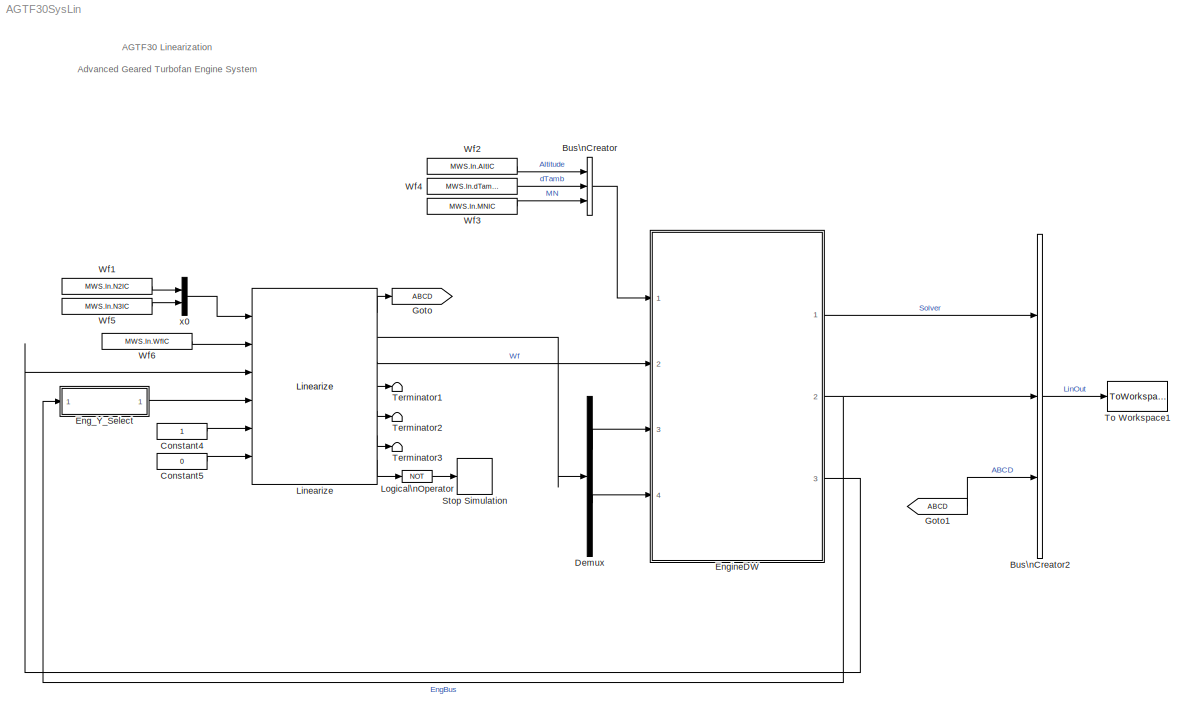
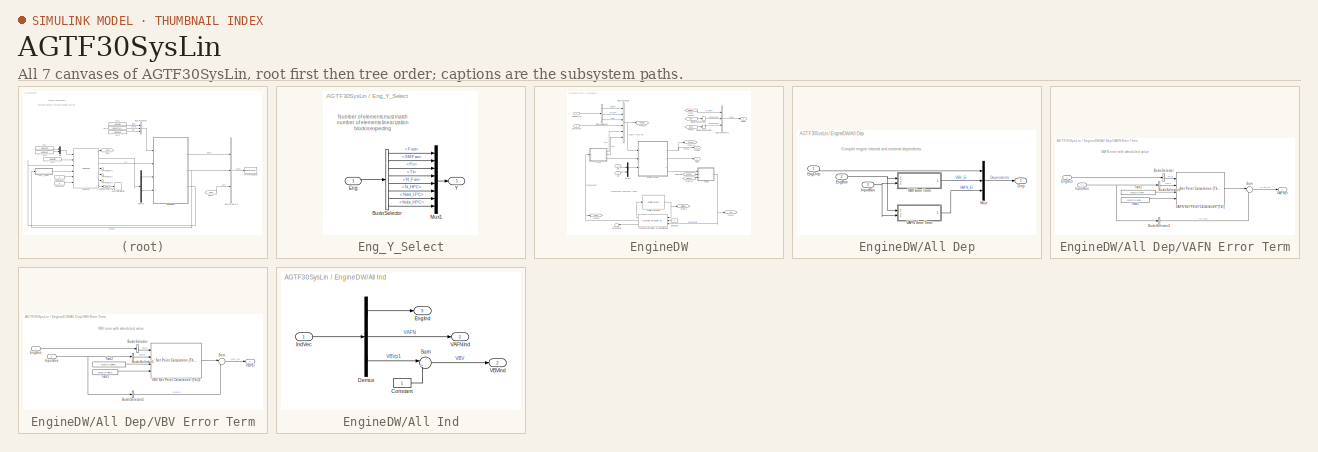
[diagram: thumbnail index - all 7 canvases of the model, root first then tree order]
MODEL AGTF30SysLin
KIND model
BLOCK [BusCreator] Bus\nCreator
  DisplayOption = bar
  Inputs = 3
  Ports = [3, 1]
  SID = 34
BLOCK [BusCreator] Bus\nCreator2
  DisplayOption = bar
  Inputs = 3
  Ports = [3, 1]
  SID = 60
BLOCK [Constant] Constant4
  SID = 48
BLOCK [Constant] Constant5
  SID = 49
  Value = 0
BLOCK [Demux] Demux
  DisplayOption = bar
  Outputs = 2
  Ports = [1, 2]
  SID = 42
BLOCK [SubSystem] Eng_Y_Select
  Ports = [1, 1]
  RequestExecContextInheritance = off
  SID = 54
BLOCK [BusSelector] Eng_Y_Select/Bus\nSelector
  OutputSignals = Perf.Fnet,SM.SMFan,S36.Ps,S45.Tt,Shaft.N_Fan,Shaft.N_HPC,Shaft.Ndot_LPC,Shaft.Ndot_HPC
  Ports = [1, 8]
  SID = 56
BLOCK [Inport] Eng_Y_Select/Eng
  IconDisplay = Port number
  SID = 55
BLOCK [Mux] Eng_Y_Select/Mux1
  DisplayOption = bar
  Inputs = 8
  Ports = [8, 1]
  SID = 57
BLOCK [Outport] Eng_Y_Select/Y
  IconDisplay = Port number
  SID = 58
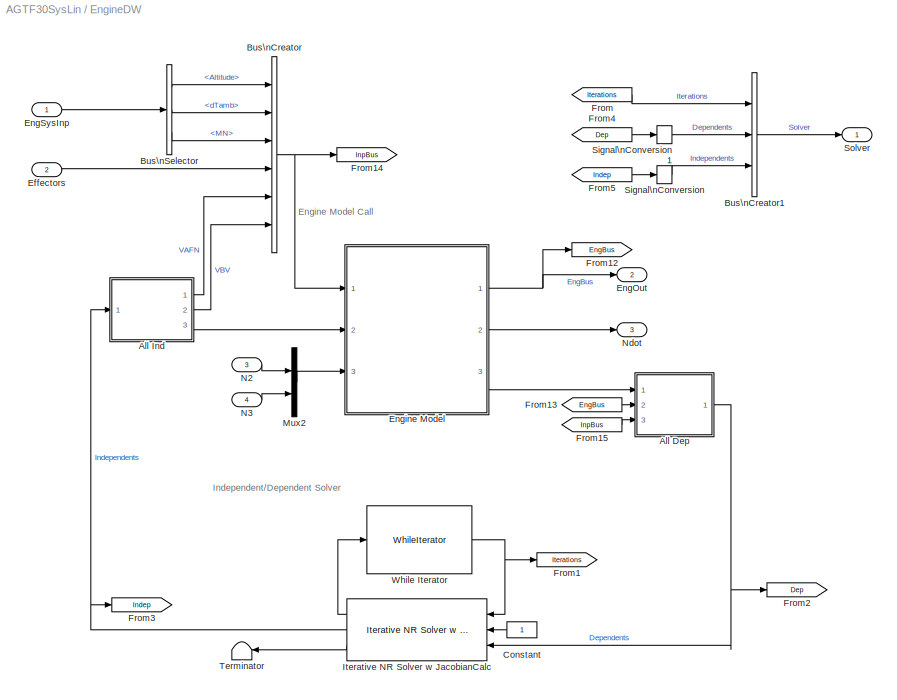
BLOCK [SubSystem] EngineDW
  Ports = [4, 3]
  RequestExecContextInheritance = off
  SID = 1
BLOCK [SubSystem] EngineDW/All Dep
  Ports = [3, 1]
  RequestExecContextInheritance = off
  SID = 113
BLOCK [Outport] EngineDW/All Dep/Dep
  IconDisplay = Port number
  SID = 118
BLOCK [Inport] EngineDW/All Dep/EngBus
  IconDisplay = Port number
  Port = 2
  SID = 115
BLOCK [Inport] EngineDW/All Dep/EngDep
  IconDisplay = Port number
  SID = 114
BLOCK [Inport] EngineDW/All Dep/InputBus
  IconDisplay = Port number
  Port = 3
  SID = 116
BLOCK [Mux] EngineDW/All Dep/Mux
  DisplayOption = bar
  Inputs = 3
  Ports = [3, 1]
  SID = 112
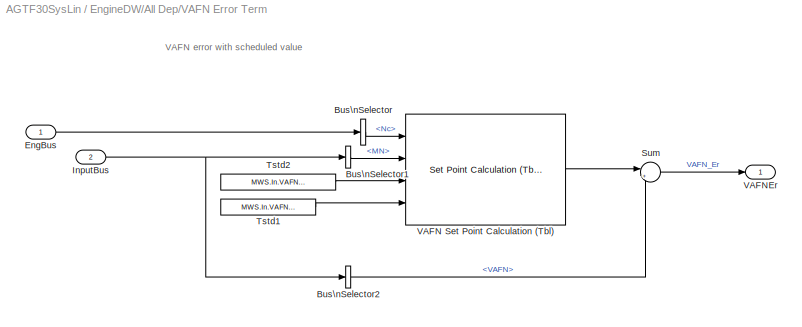
BLOCK [SubSystem] EngineDW/All Dep/VAFN Error Term
  Ports = [2, 1]
  RequestExecContextInheritance = off
  SID = 67
BLOCK [BusSelector] EngineDW/All Dep/VAFN Error Term/Bus\nSelector
  OutputSignals = Data.FAN_Data.Nc
  Ports = [1, 1]
  SID = 70
BLOCK [BusSelector] EngineDW/All Dep/VAFN Error Term/Bus\nSelector1
  OutputSignals = MN
  Ports = [1, 1]
  SID = 71
BLOCK [BusSelector] EngineDW/All Dep/VAFN Error Term/Bus\nSelector2
  OutputSignals = VAFN
  Ports = [1, 1]
  SID = 72
BLOCK [Inport] EngineDW/All Dep/VAFN Error Term/EngBus
  IconDisplay = Port number
  SID = 68
BLOCK [Inport] EngineDW/All Dep/VAFN Error Term/InputBus
  IconDisplay = Port number
  Port = 2
  SID = 69
BLOCK [Sum] EngineDW/All Dep/VAFN Error Term/Sum
  IconShape = round
  InputSameDT = off
  Inputs = |+-
  OutDataTypeStr = Inherit: Inherit via internal rule
  Ports = [2, 1]
  SID = 73
  SaturateOnIntegerOverflow = off
BLOCK [Constant] EngineDW/All Dep/VAFN Error Term/Tstd1
  SID = 74
  Value = MWS.In.VAFNIC
BLOCK [Constant] EngineDW/All Dep/VAFN Error Term/Tstd2
  SID = 75
  Value = MWS.In.VAFNManEn
BLOCK [Reference] EngineDW/All Dep/VAFN Error Term/VAFN Set Point Calculation (Tbl)  REF=Lib_Cntrl_SetPoint_TMATS/Set Point Calculation (Tbl)
  DSVec_M = MWS.Cntrl.VAFN_MN
  ERVec_M = MWS.Cntrl.VAFN_Nc1
  Ports = [4, 1]
  SID = 76
  SPArray_M = MWS.Cntrl.VAFN_sch
  SourceBlock = Lib_Cntrl_SetPoint_TMATS/Set Point Calculation (Tbl)
  SourceType = T-MATS: Set Point Calculation (Tbl)
BLOCK [Outport] EngineDW/All Dep/VAFN Error Term/VAFNEr
  IconDisplay = Port number
  SID = 77
BLOCK [SubSystem] EngineDW/All Dep/VBV Error Term
  Ports = [2, 1]
  RequestExecContextInheritance = off
  SID = 78
BLOCK [BusSelector] EngineDW/All Dep/VBV Error Term/Bus\nSelector
  OutputSignals = Data.FAN_Data.Nc
  Ports = [1, 1]
  SID = 81
BLOCK [BusSelector] EngineDW/All Dep/VBV Error Term/Bus\nSelector1
  OutputSignals = MN
  Ports = [1, 1]
  SID = 82
BLOCK [BusSelector] EngineDW/All Dep/VBV Error Term/Bus\nSelector2
  OutputSignals = VBV
  Ports = [1, 1]
  SID = 83
BLOCK [Inport] EngineDW/All Dep/VBV Error Term/EngBus
  IconDisplay = Port number
  SID = 79
BLOCK [Inport] EngineDW/All Dep/VBV Error Term/InputBus
  IconDisplay = Port number
  Port = 2
  SID = 80
BLOCK [Sum] EngineDW/All Dep/VBV Error Term/Sum
  IconShape = round
  InputSameDT = off
  Inputs = |+-
  OutDataTypeStr = Inherit: Inherit via internal rule
  Ports = [2, 1]
  SID = 84
  SaturateOnIntegerOverflow = off
BLOCK [Constant] EngineDW/All Dep/VBV Error Term/Tstd1
  SID = 85
  Value = MWS.In.VBVIC
BLOCK [Constant] EngineDW/All Dep/VBV Error Term/Tstd2
  SID = 86
  Value = MWS.In.VBVManEn
BLOCK [Reference] EngineDW/All Dep/VBV Error Term/VBV Set Point Calculation (Tbl)1  REF=Lib_Cntrl_SetPoint_TMATS/Set Point Calculation (Tbl)
  DSVec_M = MWS.Cntrl.VBV_MN
  ERVec_M = MWS.Cntrl.VBV_Nc1
  Ports = [4, 1]
  SID = 87
  SPArray_M = MWS.Cntrl.VBV_sch
  SourceBlock = Lib_Cntrl_SetPoint_TMATS/Set Point Calculation (Tbl)
  SourceType = T-MATS: Set Point Calculation (Tbl)
BLOCK [Outport] EngineDW/All Dep/VBV Error Term/VBVEr
  IconDisplay = Port number
  SID = 88
BLOCK [SubSystem] EngineDW/All Ind
  Ports = [1, 3]
  RequestExecContextInheritance = off
  SID = 126
BLOCK [Constant] EngineDW/All Ind/Constant
  SID = 134
BLOCK [Demux] EngineDW/All Ind/Demux
  DisplayOption = bar
  Outputs = [7 1 1]
  Ports = [1, 3]
  SID = 89
BLOCK [Outport] EngineDW/All Ind/EngInd
  IconDisplay = Port number
  Port = 3
  SID = 130
BLOCK [Inport] EngineDW/All Ind/IndVec
  IconDisplay = Port number
  SID = 131
BLOCK [Sum] EngineDW/All Ind/Sum
  IconShape = round
  InputSameDT = off
  Inputs = |+-
  OutDataTypeStr = Inherit: Inherit via internal rule
  Ports = [2, 1]
  SID = 133
  SaturateOnIntegerOverflow = off
BLOCK [Outport] EngineDW/All Ind/VAFNInd
  IconDisplay = Port number
  SID = 128
BLOCK [Outport] EngineDW/All Ind/VBVInd
  IconDisplay = Port number
  Port = 2
  SID = 129
BLOCK [BusCreator] EngineDW/Bus\nCreator
  DisplayOption = bar
  Inputs = 6
  Ports = [6, 1]
  SID = 108
BLOCK [BusCreator] EngineDW/Bus\nCreator1
  DisplayOption = bar
  Inputs = 3
  Ports = [3, 1]
  SID = 6
BLOCK [BusSelector] EngineDW/Bus\nSelector
  OutputSignals = Altitude,dTamb,MN
  Ports = [1, 3]
  SID = 7
BLOCK [Constant] EngineDW/Constant
  SID = 9
BLOCK [Inport] EngineDW/Effectors
  IconDisplay = Port number
  Port = 2
  SID = 3
BLOCK [Outport] EngineDW/EngOut
  IconDisplay = Port number
  Port = 2
  SID = 25
BLOCK [Inport] EngineDW/EngSysInp
  IconDisplay = Port number
  SID = 2
BLOCK [ModelReference] EngineDW/Engine Model
  CopyOfModelName = AGTF30_eng.mdl
  DefaultDataLogging = on
  ModelNameDialog = AGTF30_eng.mdl
  ModelReferenceVersion = 1.306
  Ports = [3, 3]
  SID = 11
BLOCK [From] EngineDW/From
  GotoTag = Iterations
  SID = 12
BLOCK [Goto] EngineDW/From1
  GotoTag = Iterations
  SID = 13
BLOCK [Goto] EngineDW/From12
  GotoTag = EngBus
  SID = 104
BLOCK [From] EngineDW/From13
  GotoTag = EngBus
  SID = 106
BLOCK [Goto] EngineDW/From14
  GotoTag = InpBus
  SID = 109
BLOCK [From] EngineDW/From15
  GotoTag = InpBus
  SID = 111
BLOCK [Goto] EngineDW/From2
  GotoTag = Dep
  SID = 14
BLOCK [Goto] EngineDW/From3
  GotoTag = Indep
  SID = 15
BLOCK [From] EngineDW/From4
  GotoTag = Dep
  SID = 16
BLOCK [From] EngineDW/From5
  GotoTag = Indep
  SID = 17
BLOCK [Reference] EngineDW/Iterative NR Solver w JacobianCalc  REF=Lib_Solve_IterNRSolverJC_TMATS/Iterative NR Solver w JacobianCalc
  Cond_Limits_M = MWS.In.Lim
  Ports = [3, 3]
  SID = 18
  SJac_Per_M = [MWS.In.JPerDyn MWS.In.JPerSS(:,10:11)]
  SJacobianAttempts_M = MWS.In.NRASS
  SNR_DX_M = MWS.In.dX
  SNR_IC_M = [MWS.In.ICcom MWS.In.ICss(4:5)]
  SNR_Mn_M = 0.0001
  SNR_Mx_M = 100000
  SourceBlock = Lib_Solve_IterNRSolverJC_TMATS/Iterative NR Solver w JacobianCalc
  SourceType = T-MATS: Iterative NR Solver w Jacobian Calc Library Block
BLOCK [Mux] EngineDW/Mux2
  DisplayOption = bar
  Inputs = 2
  Ports = [2, 1]
  SID = 20
BLOCK [Inport] EngineDW/N2
  IconDisplay = Port number
  Port = 3
  SID = 4
BLOCK [Inport] EngineDW/N3
  IconDisplay = Port number
  Port = 4
  SID = 5
BLOCK [Outport] EngineDW/Ndot
  IconDisplay = Port number
  Port = 3
  SID = 27
BLOCK [SignalConversion] EngineDW/Signal\nConversion
  SID = 21
BLOCK [SignalConversion] EngineDW/Signal\nConversion1
  SID = 22
BLOCK [Outport] EngineDW/Solver
  IconDisplay = Port number
  SID = 26
BLOCK [Terminator] EngineDW/Terminator
  SID = 23
BLOCK [WhileIterator] EngineDW/While Iterator
  MaxIters = MWS.In.Max_IterSS
  Ports = [1, 1]
  SID = 24
  ShowIterationPort = on
  WhileBlockType = do-while
BLOCK [Goto] Goto
  GotoTag = ABCD
  SID = 62
BLOCK [From] Goto1
  GotoTag = ABCD
  SID = 64
BLOCK [Reference] Linearize  REF=Lib_Solve_Linearize_TMATS/Linearize
  N_UPer_M = MWS.In.UPerLin
  N_XPer_M = MWS.In.XPerLin
  N_Y_M = 8
  Ports = [6, 7]
  SID = 41
  SourceBlock = Lib_Solve_Linearize_TMATS/Linearize
  SourceType = T-MATS: Linearize Library Block
BLOCK [Logic] Logical\nOperator
  AllPortsSameDT = off
  Operator = NOT
  OutDataTypeStr = boolean
  Ports = [1, 1]
  SID = 46
BLOCK [Stop] Stop Simulation
  SID = 47
BLOCK [Terminator] Terminator1
  SID = 43
BLOCK [Terminator] Terminator2
  SID = 44
BLOCK [Terminator] Terminator3
  SID = 45
BLOCK [ToWorkspace] To Workspace1
  FixptAsFi = on
  MaxDataPoints = 1
  Ports = [1]
  SID = 61
  SampleTime = -1
  Save2DSignal = 3-D array (concatenate along third dimension)
  SaveFormat = Timeseries
  VariableName = out_Lin
BLOCK [Constant] Wf1
  SID = 50
  Value = MWS.In.N2IC
BLOCK [Constant] Wf2
  SID = 31
  Value = MWS.In.AltIC
BLOCK [Constant] Wf3
  SID = 32
  Value = MWS.In.MNIC
BLOCK [Constant] Wf4
  SID = 33
  Value = MWS.In.dTambIC
BLOCK [Constant] Wf5
  SID = 51
  Value = MWS.In.N3IC
BLOCK [Constant] Wf6
  SID = 52
  Value = MWS.In.WfIC
BLOCK [Mux] x0
  DisplayOption = bar
  Inputs = 2
  Ports = [2, 1]
  SID = 53
ANNOTATION (root): \n \n AGTF30 Linearization \n Advanced Geared Turbofan Engine System \n
ANNOTATION Eng_Y_Select: Number of elements must match \nnumber of elements linearization\n block is expecting
ANNOTATION EngineDW: \n \n Independent/Dependent Solver
ANNOTATION EngineDW: \n \n Engine Model Call
ANNOTATION EngineDW/All Dep: \n \n Compile engine internal and external dependents
ANNOTATION EngineDW/All Dep/VAFN Error Term: \n \n VAFN error with scheduled value
ANNOTATION EngineDW/All Dep/VBV Error Term: \n \n VBV error with scheduled value
LINE Bus\nCreator2:1 -> To Workspace1:1
LINE Bus\nCreator:1 -> EngineDW:1
LINE Constant4:1 -> Linearize:5
LINE Constant5:1 -> Linearize:6
LINE Demux:1 -> EngineDW:3
LINE Demux:2 -> EngineDW:4
LINE Eng_Y_Select/Bus\nSelector:1 -> Eng_Y_Select/Mux1:1
LINE Eng_Y_Select/Bus\nSelector:2 -> Eng_Y_Select/Mux1:2
LINE Eng_Y_Select/Bus\nSelector:3 -> Eng_Y_Select/Mux1:3
LINE Eng_Y_Select/Bus\nSelector:4 -> Eng_Y_Select/Mux1:4
LINE Eng_Y_Select/Bus\nSelector:5 -> Eng_Y_Select/Mux1:5
LINE Eng_Y_Select/Bus\nSelector:6 -> Eng_Y_Select/Mux1:6
LINE Eng_Y_Select/Bus\nSelector:7 -> Eng_Y_Select/Mux1:7
LINE Eng_Y_Select/Bus\nSelector:8 -> Eng_Y_Select/Mux1:8
LINE Eng_Y_Select/Eng:1 -> Eng_Y_Select/Bus\nSelector:1
LINE Eng_Y_Select/Mux1:1 -> Eng_Y_Select/Y:1
LINE Eng_Y_Select:1 -> Linearize:4
NET EngineDW/All Dep/EngBus:1 -> EngineDW/All Dep/VAFN Error Term:1, EngineDW/All Dep/VBV Error Term:1
LINE EngineDW/All Dep/EngDep:1 -> EngineDW/All Dep/Mux:1
NET EngineDW/All Dep/InputBus:1 -> EngineDW/All Dep/VAFN Error Term:2, EngineDW/All Dep/VBV Error Term:2
LINE EngineDW/All Dep/Mux:1 -> EngineDW/All Dep/Dep:1
LINE EngineDW/All Dep/VAFN Error Term/Bus\nSelector1:1 -> EngineDW/All Dep/VAFN Error Term/VAFN Set Point Calculation (Tbl):2
LINE EngineDW/All Dep/VAFN Error Term/Bus\nSelector2:1 -> EngineDW/All Dep/VAFN Error Term/Sum:2
LINE EngineDW/All Dep/VAFN Error Term/Bus\nSelector:1 -> EngineDW/All Dep/VAFN Error Term/VAFN Set Point Calculation (Tbl):1
LINE EngineDW/All Dep/VAFN Error Term/EngBus:1 -> EngineDW/All Dep/VAFN Error Term/Bus\nSelector:1
NET EngineDW/All Dep/VAFN Error Term/InputBus:1 -> EngineDW/All Dep/VAFN Error Term/Bus\nSelector1:1, EngineDW/All Dep/VAFN Error Term/Bus\nSelector2:1
LINE EngineDW/All Dep/VAFN Error Term/Sum:1 -> EngineDW/All Dep/VAFN Error Term/VAFNEr:1
LINE EngineDW/All Dep/VAFN Error Term/Tstd1:1 -> EngineDW/All Dep/VAFN Error Term/VAFN Set Point Calculation (Tbl):4
LINE EngineDW/All Dep/VAFN Error Term/Tstd2:1 -> EngineDW/All Dep/VAFN Error Term/VAFN Set Point Calculation (Tbl):3
LINE EngineDW/All Dep/VAFN Error Term/VAFN Set Point Calculation (Tbl):1 -> EngineDW/All Dep/VAFN Error Term/Sum:1
LINE EngineDW/All Dep/VAFN Error Term:1 -> EngineDW/All Dep/Mux:3
LINE EngineDW/All Dep/VBV Error Term/Bus\nSelector1:1 -> EngineDW/All Dep/VBV Error Term/VBV Set Point Calculation (Tbl)1:2
LINE EngineDW/All Dep/VBV Error Term/Bus\nSelector2:1 -> EngineDW/All Dep/VBV Error Term/Sum:2
LINE EngineDW/All Dep/VBV Error Term/Bus\nSelector:1 -> EngineDW/All Dep/VBV Error Term/VBV Set Point Calculation (Tbl)1:1
LINE EngineDW/All Dep/VBV Error Term/EngBus:1 -> EngineDW/All Dep/VBV Error Term/Bus\nSelector:1
NET EngineDW/All Dep/VBV Error Term/InputBus:1 -> EngineDW/All Dep/VBV Error Term/Bus\nSelector1:1, EngineDW/All Dep/VBV Error Term/Bus\nSelector2:1
LINE EngineDW/All Dep/VBV Error Term/Sum:1 -> EngineDW/All Dep/VBV Error Term/VBVEr:1
LINE EngineDW/All Dep/VBV Error Term/Tstd1:1 -> EngineDW/All Dep/VBV Error Term/VBV Set Point Calculation (Tbl)1:4
LINE EngineDW/All Dep/VBV Error Term/Tstd2:1 -> EngineDW/All Dep/VBV Error Term/VBV Set Point Calculation (Tbl)1:3
LINE EngineDW/All Dep/VBV Error Term/VBV Set Point Calculation (Tbl)1:1 -> EngineDW/All Dep/VBV Error Term/Sum:1
LINE EngineDW/All Dep/VBV Error Term:1 -> EngineDW/All Dep/Mux:2
NET EngineDW/All Dep:1 -> EngineDW/From2:1, EngineDW/Iterative NR Solver w JacobianCalc:3
LINE EngineDW/All Ind/Constant:1 -> EngineDW/All Ind/Sum:2
LINE EngineDW/All Ind/Demux:1 -> EngineDW/All Ind/EngInd:1
LINE EngineDW/All Ind/Demux:2 -> EngineDW/All Ind/VAFNInd:1
LINE EngineDW/All Ind/Demux:3 -> EngineDW/All Ind/Sum:1
LINE EngineDW/All Ind/IndVec:1 -> EngineDW/All Ind/Demux:1
LINE EngineDW/All Ind/Sum:1 -> EngineDW/All Ind/VBVInd:1
LINE EngineDW/All Ind:1 -> EngineDW/Bus\nCreator:5
LINE EngineDW/All Ind:2 -> EngineDW/Bus\nCreator:6
LINE EngineDW/All Ind:3 -> EngineDW/Engine Model:2
LINE EngineDW/Bus\nCreator1:1 -> EngineDW/Solver:1
NET EngineDW/Bus\nCreator:1 -> EngineDW/Engine Model:1, EngineDW/From14:1
LINE EngineDW/Bus\nSelector:1 -> EngineDW/Bus\nCreator:1
LINE EngineDW/Bus\nSelector:2 -> EngineDW/Bus\nCreator:2
LINE EngineDW/Bus\nSelector:3 -> EngineDW/Bus\nCreator:3
LINE EngineDW/Constant:1 -> EngineDW/Iterative NR Solver w JacobianCalc:2
LINE EngineDW/Effectors:1 -> EngineDW/Bus\nCreator:4
LINE EngineDW/EngSysInp:1 -> EngineDW/Bus\nSelector:1
NET EngineDW/Engine Model:1 -> EngineDW/EngOut:1, EngineDW/From12:1
LINE EngineDW/Engine Model:2 -> EngineDW/Ndot:1
LINE EngineDW/Engine Model:3 -> EngineDW/All Dep:1
LINE EngineDW/From13:1 -> EngineDW/All Dep:2
LINE EngineDW/From15:1 -> EngineDW/All Dep:3
LINE EngineDW/From4:1 -> EngineDW/Signal\nConversion1:1
LINE EngineDW/From5:1 -> EngineDW/Signal\nConversion:1
LINE EngineDW/From:1 -> EngineDW/Bus\nCreator1:1
LINE EngineDW/Iterative NR Solver w JacobianCalc:1 -> EngineDW/While Iterator:1
NET EngineDW/Iterative NR Solver w JacobianCalc:2 -> EngineDW/All Ind:1, EngineDW/From3:1
LINE EngineDW/Iterative NR Solver w JacobianCalc:3 -> EngineDW/Terminator:1
LINE EngineDW/Mux2:1 -> EngineDW/Engine Model:3
LINE EngineDW/N2:1 -> EngineDW/Mux2:1
LINE EngineDW/N3:1 -> EngineDW/Mux2:2
LINE EngineDW/Signal\nConversion1:1 -> EngineDW/Bus\nCreator1:2
LINE EngineDW/Signal\nConversion:1 -> EngineDW/Bus\nCreator1:3
NET EngineDW/While Iterator:1 -> EngineDW/From1:1, EngineDW/Iterative NR Solver w JacobianCalc:1
LINE EngineDW:1 -> Bus\nCreator2:1
NET EngineDW:2 -> Bus\nCreator2:2, Eng_Y_Select:1
LINE EngineDW:3 -> Linearize:3
LINE Goto1:1 -> Bus\nCreator2:3
LINE Linearize:1 -> Goto:1
LINE Linearize:2 -> Demux:1
LINE Linearize:3 -> EngineDW:2
LINE Linearize:4 -> Terminator1:1
LINE Linearize:5 -> Terminator2:1
LINE Linearize:6 -> Terminator3:1
LINE Linearize:7 -> Logical\nOperator:1
LINE Logical\nOperator:1 -> Stop Simulation:1
LINE Wf1:1 -> x0:1
LINE Wf2:1 -> Bus\nCreator:1
LINE Wf3:1 -> Bus\nCreator:3
LINE Wf4:1 -> Bus\nCreator:2
LINE Wf5:1 -> x0:2
LINE Wf6:1 -> Linearize:2
LINE x0:1 -> Linearize:1
note: NET lines group one-source signal fan-out (src -> all destinations, sorted); 1:1 wires keep LINE
